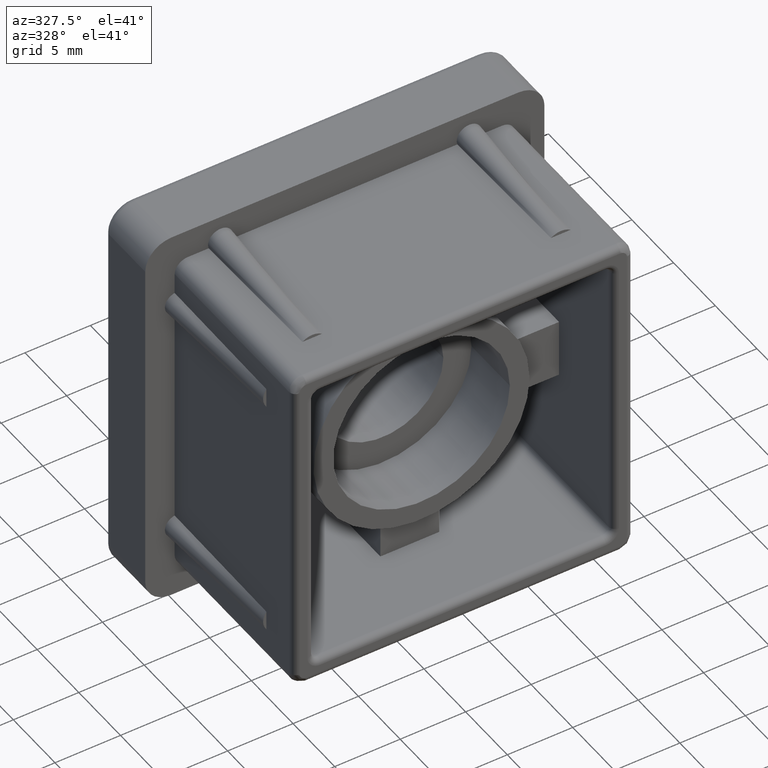
[diagram: clean part render]
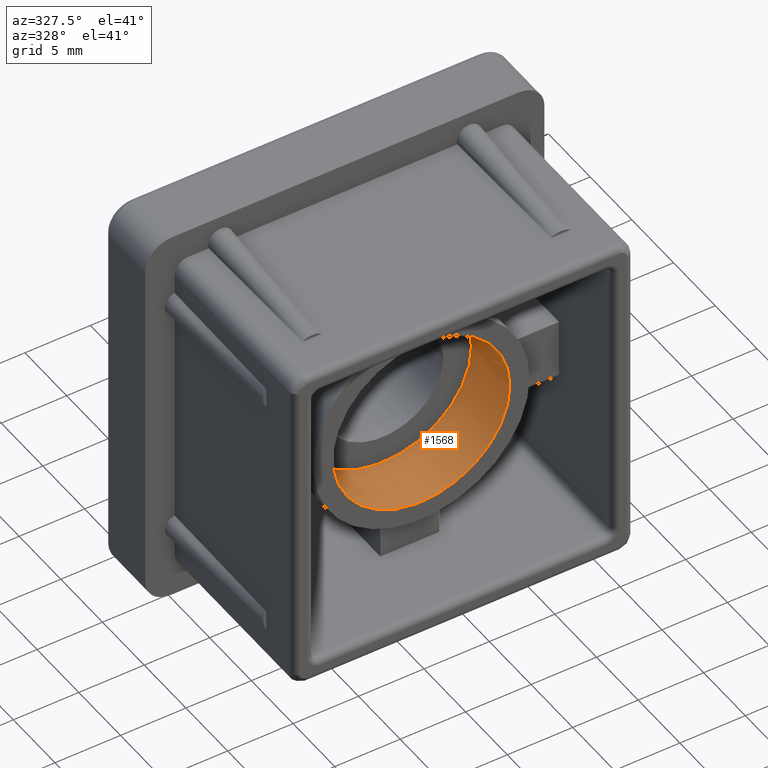
[diagram: same view with one face highlighted and labeled with its STEP entity id]
A machine part, auxiliary view. The second image highlights one B-rep face of the part: STEP entity #1568.
In plain terms, the highlighted cylindrical surface (bore or boss wall) has radius 6.75 mm, axis along (0, -1, 0).
Its self-contained STEP definition (entity closure, byte-faithful):
#49=FACE_BOUND('',#572,.T.);
#384=CYLINDRICAL_SURFACE('',#1732,6.75);
#471=FACE_OUTER_BOUND('',#571,.T.);
#571=EDGE_LOOP('',(#1454));
#572=EDGE_LOOP('',(#1455));
#660=CIRCLE('',#1731,6.75);
#661=CIRCLE('',#1733,6.75);
#804=VERTEX_POINT('',#3025);
#805=VERTEX_POINT('',#3028);
#1028=EDGE_CURVE('',#804,#804,#660,.T.);
#1029=EDGE_CURVE('',#805,#805,#661,.T.);
#1454=ORIENTED_EDGE('',*,*,#1028,.T.);
#1455=ORIENTED_EDGE('',*,*,#1029,.F.);
#1568=ADVANCED_FACE('',(#471,#49),#384,.F.);
#1731=AXIS2_PLACEMENT_3D('',#3026,#2184,#2185);
#1732=AXIS2_PLACEMENT_3D('',#3027,#2186,#2187);
#1733=AXIS2_PLACEMENT_3D('',#3029,#2188,#2189);
#2184=DIRECTION('center_axis',(0.,1.,0.));
#2185=DIRECTION('ref_axis',(-1.,0.,0.));
#2186=DIRECTION('center_axis',(0.,-1.,0.));
#2187=DIRECTION('ref_axis',(-1.,0.,0.));
#2188=DIRECTION('center_axis',(0.,1.,0.));
#2189=DIRECTION('ref_axis',(-1.,0.,0.));
#3025=CARTESIAN_POINT('',(19.75,9.6,7.4879747371754E-15));
#3026=CARTESIAN_POINT('Origin',(13.,9.60000000000001,6.66133814775094E-15));
#3027=CARTESIAN_POINT('Origin',(13.,14.2,6.66133814775094E-15));
#3028=CARTESIAN_POINT('',(19.75,5.,7.4879747371754E-15));
#3029=CARTESIAN_POINT('Origin',(13.,5.,6.66133814775094E-15));